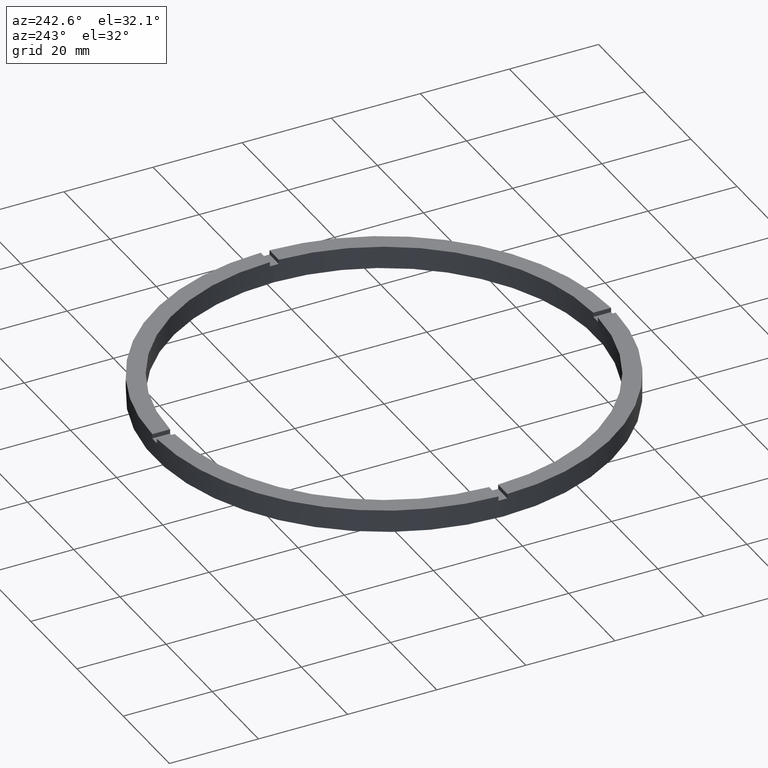
[diagram: clean part render]
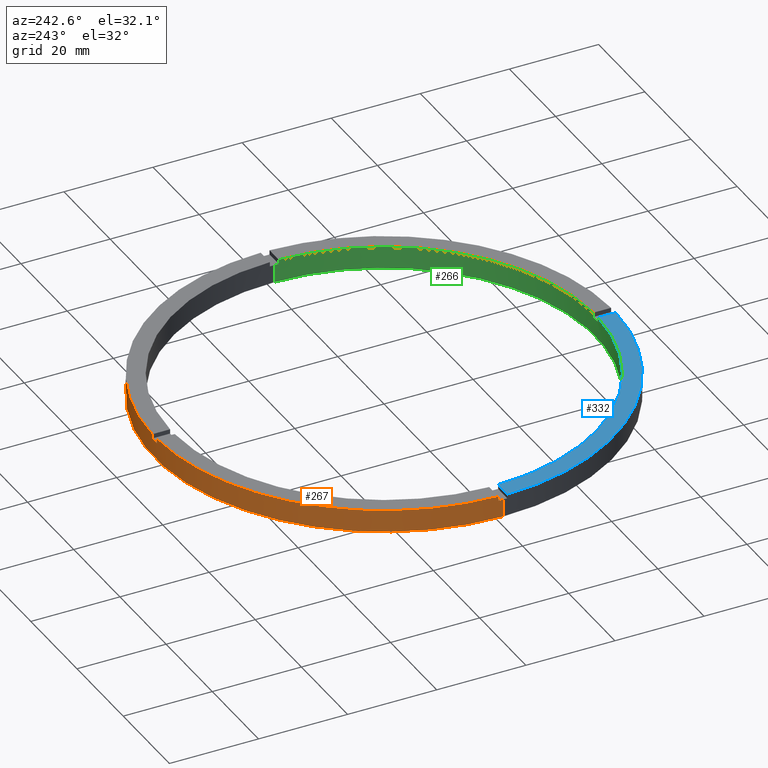
[diagram: same view with three faces highlighted in distinct colors, each labeled with its STEP entity id]
A machine part, auxiliary view with three faces highlighted in distinct colors.
Their STEP definitions:

[orange] entity #267 — the highlighted cylindrical surface (partial cylindrical patch) has radius 51.5 mm, axis along (-0, -0, -1).
#5 = DIRECTION ( 'NONE',  ( 0.000000000000000000, 0.000000000000000000, 1.000000000000000000 ) ) ;
#16 = VECTOR ( 'NONE', #663, 1000.000000000000000 ) ;
#20 = LINE ( 'NONE', #373, #16 ) ;
#23 = VECTOR ( 'NONE', #202, 1000.000000000000000 ) ;
#26 = VECTOR ( 'NONE', #5, 1000.000000000000000 ) ;
#27 = CARTESIAN_POINT ( 'NONE',  ( 0.000000000000000000, 0.000000000000000000, 0.000000000000000000 ) ) ;
#40 = AXIS2_PLACEMENT_3D ( 'NONE', #416, #780, #235 ) ;
#50 = CIRCLE ( 'NONE', #251, 51.50000000000000000 ) ;
#69 = CARTESIAN_POINT ( 'NONE',  ( -51.49029034682169481, 0.9999999999999681366, 5.000000000000000000 ) ) ;
#72 = VECTOR ( 'NONE', #738, 1000.000000000000000 ) ;
#101 = CARTESIAN_POINT ( 'NONE',  ( 0.000000000000000000, 0.000000000000000000, 5.000000000000000000 ) ) ;
#106 = ORIENTED_EDGE ( 'NONE', *, *, #641, .F. ) ;
#117 = VERTEX_POINT ( 'NONE', #261 ) ;
#125 = CARTESIAN_POINT ( 'NONE',  ( 51.50000000000000000, 6.306931015608868807E-15, 4.000000000000000000 ) ) ;
#153 = ORIENTED_EDGE ( 'NONE', *, *, #494, .F. ) ;
#156 = EDGE_CURVE ( 'NONE', #403, #117, #571, .T. ) ;
#158 = ORIENTED_EDGE ( 'NONE', *, *, #635, .T. ) ;
#174 = VERTEX_POINT ( 'NONE', #551 ) ;
#199 = AXIS2_PLACEMENT_3D ( 'NONE', #247, #435, #746 ) ;
#202 = DIRECTION ( 'NONE',  ( -0.000000000000000000, -0.000000000000000000, -1.000000000000000000 ) ) ;
#217 = VERTEX_POINT ( 'NONE', #298 ) ;
#226 = DIRECTION ( 'NONE',  ( 0.000000000000000000, 0.000000000000000000, 1.000000000000000000 ) ) ;
#235 = DIRECTION ( 'NONE',  ( 1.000000000000000000, 0.000000000000000000, 0.000000000000000000 ) ) ;
#237 = EDGE_CURVE ( 'NONE', #524, #399, #20, .T. ) ;
#247 = CARTESIAN_POINT ( 'NONE',  ( 0.000000000000000000, 0.000000000000000000, 5.000000000000000000 ) ) ;
#251 = AXIS2_PLACEMENT_3D ( 'NONE', #27, #648, #413 ) ;
#261 = CARTESIAN_POINT ( 'NONE',  ( 51.50000000000000000, 6.306931015608868807E-15, 0.000000000000000000 ) ) ;
#267 = ADVANCED_FACE ( 'NONE', ( #278 ), #546, .T. ) ;
#278 = FACE_OUTER_BOUND ( 'NONE', #515, .T. ) ;
#280 = LINE ( 'NONE', #69, #26 ) ;
#292 = EDGE_CURVE ( 'NONE', #217, #433, #562, .T. ) ;
#298 = CARTESIAN_POINT ( 'NONE',  ( 51.49029034682169481, 0.9999999999998452349, 5.000000000000000000 ) ) ;
#306 = LINE ( 'NONE', #671, #541 ) ;
#321 = CIRCLE ( 'NONE', #539, 51.50000000000000000 ) ;
#322 = CARTESIAN_POINT ( 'NONE',  ( 51.49029034682169481, 0.9999999999998452349, 4.000000000000000000 ) ) ;
#323 = VECTOR ( 'NONE', #708, 1000.000000000000000 ) ;
#331 = EDGE_CURVE ( 'NONE', #174, #433, #306, .T. ) ;
#334 = EDGE_CURVE ( 'NONE', #174, #399, #559, .T. ) ;
#364 = AXIS2_PLACEMENT_3D ( 'NONE', #508, #668, #557 ) ;
#373 = CARTESIAN_POINT ( 'NONE',  ( -1.000000000000026867, 51.49029034682169481, 5.000000000000000000 ) ) ;
#376 = EDGE_CURVE ( 'NONE', #414, #528, #280, .T. ) ;
#381 = VERTEX_POINT ( 'NONE', #322 ) ;
#384 = ORIENTED_EDGE ( 'NONE', *, *, #331, .T. ) ;
#396 = VERTEX_POINT ( 'NONE', #464 ) ;
#398 = DIRECTION ( 'NONE',  ( 1.000000000000000000, 0.000000000000000000, 0.000000000000000000 ) ) ;
#399 = VERTEX_POINT ( 'NONE', #519 ) ;
#403 = VERTEX_POINT ( 'NONE', #125 ) ;
#411 = EDGE_CURVE ( 'NONE', #414, #396, #569, .T. ) ;
#412 = AXIS2_PLACEMENT_3D ( 'NONE', #450, #445, #398 ) ;
#413 = DIRECTION ( 'NONE',  ( 1.000000000000000000, 0.000000000000000000, 0.000000000000000000 ) ) ;
#414 = VERTEX_POINT ( 'NONE', #618 ) ;
#416 = CARTESIAN_POINT ( 'NONE',  ( 0.000000000000000000, 0.000000000000000000, 4.000000000000000000 ) ) ;
#429 = ORIENTED_EDGE ( 'NONE', *, *, #292, .F. ) ;
#433 = VERTEX_POINT ( 'NONE', #607 ) ;
#434 = CARTESIAN_POINT ( 'NONE',  ( -51.50000000000000000, 0.000000000000000000, 0.000000000000000000 ) ) ;
#435 = DIRECTION ( 'NONE',  ( 0.000000000000000000, 0.000000000000000000, 1.000000000000000000 ) ) ;
#443 = CARTESIAN_POINT ( 'NONE',  ( -51.49029034682169481, 0.9999999999999681366, 5.000000000000000000 ) ) ;
#445 = DIRECTION ( 'NONE',  ( 0.000000000000000000, -0.000000000000000000, 1.000000000000000000 ) ) ;
#450 = CARTESIAN_POINT ( 'NONE',  ( 0.000000000000000000, 0.000000000000000000, 4.000000000000000000 ) ) ;
#454 = ORIENTED_EDGE ( 'NONE', *, *, #334, .F. ) ;
#464 = CARTESIAN_POINT ( 'NONE',  ( -51.50000000000000000, 0.000000000000000000, 4.000000000000000000 ) ) ;
#493 = DIRECTION ( 'NONE',  ( 1.000000000000000000, 0.000000000000000000, 0.000000000000000000 ) ) ;
#494 = EDGE_CURVE ( 'NONE', #396, #512, #595, .T. ) ;
#498 = CARTESIAN_POINT ( 'NONE',  ( 0.000000000000000000, 0.000000000000000000, 4.000000000000000000 ) ) ;
#507 = CARTESIAN_POINT ( 'NONE',  ( -1.000000000000026867, 51.49029034682169481, 5.000000000000000000 ) ) ;
#508 = CARTESIAN_POINT ( 'NONE',  ( 0.000000000000000000, 0.000000000000000000, 5.000000000000000000 ) ) ;
#512 = VERTEX_POINT ( 'NONE', #434 ) ;
#515 = EDGE_LOOP ( 'NONE', ( #688, #651, #158, #153, #683, #701, #106, #626, #454, #384, #429, #707 ) ) ;
#519 = CARTESIAN_POINT ( 'NONE',  ( -1.000000000000026867, 51.49029034682169481, 4.000000000000000000 ) ) ;
#524 = VERTEX_POINT ( 'NONE', #507 ) ;
#528 = VERTEX_POINT ( 'NONE', #443 ) ;
#536 = CARTESIAN_POINT ( 'NONE',  ( -51.50000000000000000, 0.000000000000000000, 5.000000000000000000 ) ) ;
#539 = AXIS2_PLACEMENT_3D ( 'NONE', #101, #226, #493 ) ;
#541 = VECTOR ( 'NONE', #747, 1000.000000000000000 ) ;
#546 = CYLINDRICAL_SURFACE ( 'NONE', #364, 51.50000000000000000 ) ;
#551 = CARTESIAN_POINT ( 'NONE',  ( 0.9999999999999731326, 51.49029034682169481, 4.000000000000000000 ) ) ;
#557 = DIRECTION ( 'NONE',  ( -1.000000000000000000, 0.000000000000000000, 0.000000000000000000 ) ) ;
#559 = CIRCLE ( 'NONE', #412, 51.50000000000000000 ) ;
#562 = CIRCLE ( 'NONE', #199, 51.50000000000000000 ) ;
#569 = CIRCLE ( 'NONE', #40, 51.50000000000000000 ) ;
#571 = LINE ( 'NONE', #664, #23 ) ;
#576 = LINE ( 'NONE', #585, #323 ) ;
#585 = CARTESIAN_POINT ( 'NONE',  ( 51.49029034682169481, 0.9999999999998452349, 5.000000000000000000 ) ) ;
#592 = CIRCLE ( 'NONE', #713, 51.50000000000000000 ) ;
#595 = LINE ( 'NONE', #536, #72 ) ;
#603 = DIRECTION ( 'NONE',  ( 0.000000000000000000, 0.000000000000000000, 1.000000000000000000 ) ) ;
#607 = CARTESIAN_POINT ( 'NONE',  ( 0.9999999999999731326, 51.49029034682169481, 5.000000000000000000 ) ) ;
#618 = CARTESIAN_POINT ( 'NONE',  ( -51.49029034682169481, 0.9999999999999681366, 4.000000000000000000 ) ) ;
#626 = ORIENTED_EDGE ( 'NONE', *, *, #237, .T. ) ;
#635 = EDGE_CURVE ( 'NONE', #117, #512, #50, .T. ) ;
#641 = EDGE_CURVE ( 'NONE', #524, #528, #321, .T. ) ;
#648 = DIRECTION ( 'NONE',  ( 0.000000000000000000, 0.000000000000000000, 1.000000000000000000 ) ) ;
#651 = ORIENTED_EDGE ( 'NONE', *, *, #156, .T. ) ;
#663 = DIRECTION ( 'NONE',  ( -0.000000000000000000, -0.000000000000000000, -1.000000000000000000 ) ) ;
#664 = CARTESIAN_POINT ( 'NONE',  ( 51.50000000000000000, 6.306931015608868807E-15, 5.000000000000000000 ) ) ;
#668 = DIRECTION ( 'NONE',  ( -0.000000000000000000, -0.000000000000000000, -1.000000000000000000 ) ) ;
#671 = CARTESIAN_POINT ( 'NONE',  ( 0.9999999999999731326, 51.49029034682169481, 5.000000000000000000 ) ) ;
#683 = ORIENTED_EDGE ( 'NONE', *, *, #411, .F. ) ;
#688 = ORIENTED_EDGE ( 'NONE', *, *, #716, .F. ) ;
#701 = ORIENTED_EDGE ( 'NONE', *, *, #376, .T. ) ;
#707 = ORIENTED_EDGE ( 'NONE', *, *, #735, .T. ) ;
#708 = DIRECTION ( 'NONE',  ( -0.000000000000000000, -0.000000000000000000, -1.000000000000000000 ) ) ;
#713 = AXIS2_PLACEMENT_3D ( 'NONE', #498, #603, #771 ) ;
#716 = EDGE_CURVE ( 'NONE', #403, #381, #592, .T. ) ;
#735 = EDGE_CURVE ( 'NONE', #217, #381, #576, .T. ) ;
#738 = DIRECTION ( 'NONE',  ( -0.000000000000000000, -0.000000000000000000, -1.000000000000000000 ) ) ;
#746 = DIRECTION ( 'NONE',  ( 1.000000000000000000, 0.000000000000000000, 0.000000000000000000 ) ) ;
#747 = DIRECTION ( 'NONE',  ( 0.000000000000000000, 0.000000000000000000, 1.000000000000000000 ) ) ;
#771 = DIRECTION ( 'NONE',  ( 1.000000000000000000, 0.000000000000000000, 0.000000000000000000 ) ) ;
#780 = DIRECTION ( 'NONE',  ( 0.000000000000000000, 0.000000000000000000, 1.000000000000000000 ) ) ;

[blue] entity #332 — the highlighted planar face has unit normal (0, 0, 1).
#58 = CARTESIAN_POINT ( 'NONE',  ( 0.000000000000000000, 0.000000000000000000, 5.000000000000000000 ) ) ;
#68 = LINE ( 'NONE', #401, #338 ) ;
#94 = DIRECTION ( 'NONE',  ( 1.000000000000000000, 1.951563910473907735E-16, -0.000000000000000000 ) ) ;
#95 = CARTESIAN_POINT ( 'NONE',  ( -47.48947251760120736, -1.000000000000031308, 5.000000000000000000 ) ) ;
#111 = DIRECTION ( 'NONE',  ( 1.000000000000000000, 0.000000000000000000, 0.000000000000000000 ) ) ;
#124 = ORIENTED_EDGE ( 'NONE', *, *, #347, .F. ) ;
#133 = VERTEX_POINT ( 'NONE', #210 ) ;
#141 = EDGE_LOOP ( 'NONE', ( #124, #472, #193, #197 ) ) ;
#170 = CARTESIAN_POINT ( 'NONE',  ( -1.000000000000156986, -47.48947251760120736, 5.000000000000000000 ) ) ;
#178 = DIRECTION ( 'NONE',  ( 0.000000000000000000, 0.000000000000000000, 1.000000000000000000 ) ) ;
#193 = ORIENTED_EDGE ( 'NONE', *, *, #779, .F. ) ;
#197 = ORIENTED_EDGE ( 'NONE', *, *, #252, .T. ) ;
#200 = DIRECTION ( 'NONE',  ( 1.000000000000000000, 0.000000000000000000, 0.000000000000000000 ) ) ;
#210 = CARTESIAN_POINT ( 'NONE',  ( -51.49029034682169481, -1.000000000000031974, 5.000000000000000000 ) ) ;
#215 = DIRECTION ( 'NONE',  ( 0.000000000000000000, 0.000000000000000000, 1.000000000000000000 ) ) ;
#252 = EDGE_CURVE ( 'NONE', #133, #394, #290, .T. ) ;
#290 = CIRCLE ( 'NONE', #692, 51.50000000000000000 ) ;
#301 = CIRCLE ( 'NONE', #370, 47.50000000000000711 ) ;
#304 = LINE ( 'NONE', #620, #307 ) ;
#307 = VECTOR ( 'NONE', #552, 1000.000000000000000 ) ;
#332 = ADVANCED_FACE ( 'NONE', ( #544 ), #783, .T. ) ;
#338 = VECTOR ( 'NONE', #94, 1000.000000000000000 ) ;
#341 = DIRECTION ( 'NONE',  ( 1.000000000000000000, 0.000000000000000000, -0.000000000000000000 ) ) ;
#347 = EDGE_CURVE ( 'NONE', #523, #394, #304, .T. ) ;
#370 = AXIS2_PLACEMENT_3D ( 'NONE', #564, #178, #111 ) ;
#383 = CARTESIAN_POINT ( 'NONE',  ( -1.000000000000156319, -51.49029034682169481, 5.000000000000000000 ) ) ;
#394 = VERTEX_POINT ( 'NONE', #383 ) ;
#401 = CARTESIAN_POINT ( 'NONE',  ( -41.50000000000018474, -1.000000000000029976, 5.000000000000000000 ) ) ;
#408 = EDGE_CURVE ( 'NONE', #634, #523, #301, .T. ) ;
#452 = AXIS2_PLACEMENT_3D ( 'NONE', #560, #215, #341 ) ;
#472 = ORIENTED_EDGE ( 'NONE', *, *, #408, .F. ) ;
#505 = DIRECTION ( 'NONE',  ( 0.000000000000000000, 0.000000000000000000, 1.000000000000000000 ) ) ;
#523 = VERTEX_POINT ( 'NONE', #170 ) ;
#544 = FACE_OUTER_BOUND ( 'NONE', #141, .T. ) ;
#552 = DIRECTION ( 'NONE',  ( 1.301042606982605074E-16, -1.000000000000000000, 0.000000000000000000 ) ) ;
#560 = CARTESIAN_POINT ( 'NONE',  ( 0.000000000000000000, 0.000000000000000000, 5.000000000000000000 ) ) ;
#564 = CARTESIAN_POINT ( 'NONE',  ( 0.000000000000000000, 0.000000000000000000, 5.000000000000000000 ) ) ;
#620 = CARTESIAN_POINT ( 'NONE',  ( -1.000000000000157652, -41.50000000000017764, 5.000000000000000000 ) ) ;
#634 = VERTEX_POINT ( 'NONE', #95 ) ;
#692 = AXIS2_PLACEMENT_3D ( 'NONE', #58, #505, #200 ) ;
#779 = EDGE_CURVE ( 'NONE', #133, #634, #68, .T. ) ;
#783 = PLANE ( 'NONE',  #452 ) ;

[green] entity #266 — the highlighted cylindrical surface (partial cylindrical patch) has radius 47.5 mm, axis along (-0, -0, -1).
#3 = DIRECTION ( 'NONE',  ( -0.000000000000000000, -0.000000000000000000, -1.000000000000000000 ) ) ;
#4 = EDGE_CURVE ( 'NONE', #698, #675, #157, .T. ) ;
#11 = AXIS2_PLACEMENT_3D ( 'NONE', #97, #549, #496 ) ;
#17 = FACE_OUTER_BOUND ( 'NONE', #476, .T. ) ;
#41 = CARTESIAN_POINT ( 'NONE',  ( -47.48947251760120736, -1.000000000000031308, 5.000000000000000000 ) ) ;
#42 = LINE ( 'NONE', #761, #335 ) ;
#47 = CARTESIAN_POINT ( 'NONE',  ( 47.48947251760120736, -1.000000000000154987, 5.000000000000000000 ) ) ;
#49 = LINE ( 'NONE', #308, #589 ) ;
#51 = LINE ( 'NONE', #41, #575 ) ;
#55 = CIRCLE ( 'NONE', #392, 47.50000000000000711 ) ;
#56 = CIRCLE ( 'NONE', #509, 47.50000000000000711 ) ;
#59 = CIRCLE ( 'NONE', #285, 47.50000000000000711 ) ;
#91 = DIRECTION ( 'NONE',  ( -0.000000000000000000, -0.000000000000000000, -1.000000000000000000 ) ) ;
#95 = CARTESIAN_POINT ( 'NONE',  ( -47.48947251760120736, -1.000000000000031308, 5.000000000000000000 ) ) ;
#97 = CARTESIAN_POINT ( 'NONE',  ( 0.000000000000000000, 0.000000000000000000, 5.000000000000000000 ) ) ;
#100 = CARTESIAN_POINT ( 'NONE',  ( 47.50000000000000711, 5.817072295949929004E-15, 4.000000000000000000 ) ) ;
#111 = DIRECTION ( 'NONE',  ( 1.000000000000000000, 0.000000000000000000, 0.000000000000000000 ) ) ;
#128 = VERTEX_POINT ( 'NONE', #751 ) ;
#132 = ORIENTED_EDGE ( 'NONE', *, *, #759, .F. ) ;
#138 = ORIENTED_EDGE ( 'NONE', *, *, #782, .T. ) ;
#145 = CARTESIAN_POINT ( 'NONE',  ( 0.9999999999998430145, -47.48947251760121446, 4.000000000000000000 ) ) ;
#148 = EDGE_CURVE ( 'NONE', #495, #766, #567, .T. ) ;
#155 = DIRECTION ( 'NONE',  ( 0.000000000000000000, 0.000000000000000000, 1.000000000000000000 ) ) ;
#157 = LINE ( 'NONE', #47, #159 ) ;
#159 = VECTOR ( 'NONE', #165, 1000.000000000000000 ) ;
#160 = VERTEX_POINT ( 'NONE', #100 ) ;
#165 = DIRECTION ( 'NONE',  ( 0.000000000000000000, 0.000000000000000000, 1.000000000000000000 ) ) ;
#166 = CARTESIAN_POINT ( 'NONE',  ( -1.000000000000156986, -47.48947251760120736, 4.000000000000000000 ) ) ;
#170 = CARTESIAN_POINT ( 'NONE',  ( -1.000000000000156986, -47.48947251760120736, 5.000000000000000000 ) ) ;
#173 = DIRECTION ( 'NONE',  ( 1.000000000000000000, 0.000000000000000000, 0.000000000000000000 ) ) ;
#178 = DIRECTION ( 'NONE',  ( 0.000000000000000000, 0.000000000000000000, 1.000000000000000000 ) ) ;
#179 = DIRECTION ( 'NONE',  ( -1.000000000000000000, 0.000000000000000000, 0.000000000000000000 ) ) ;
#181 = ORIENTED_EDGE ( 'NONE', *, *, #4, .F. ) ;
#186 = EDGE_CURVE ( 'NONE', #676, #523, #283, .T. ) ;
#187 = ORIENTED_EDGE ( 'NONE', *, *, #148, .F. ) ;
#225 = DIRECTION ( 'NONE',  ( -0.000000000000000000, 0.000000000000000000, 1.000000000000000000 ) ) ;
#250 = DIRECTION ( 'NONE',  ( 1.000000000000000000, 0.000000000000000000, 0.000000000000000000 ) ) ;
#254 = DIRECTION ( 'NONE',  ( -0.000000000000000000, -0.000000000000000000, -1.000000000000000000 ) ) ;
#266 = ADVANCED_FACE ( 'NONE', ( #17 ), #284, .F. ) ;
#283 = LINE ( 'NONE', #615, #540 ) ;
#284 = CYLINDRICAL_SURFACE ( 'NONE', #757, 47.50000000000000711 ) ;
#285 = AXIS2_PLACEMENT_3D ( 'NONE', #666, #368, #250 ) ;
#291 = CARTESIAN_POINT ( 'NONE',  ( 47.48947251760120736, -1.000000000000154987, 4.000000000000000000 ) ) ;
#299 = CARTESIAN_POINT ( 'NONE',  ( 0.9999999999998430145, -47.48947251760121446, 5.000000000000000000 ) ) ;
#301 = CIRCLE ( 'NONE', #370, 47.50000000000000711 ) ;
#308 = CARTESIAN_POINT ( 'NONE',  ( 47.50000000000000711, 5.817072295949929004E-15, 5.000000000000000000 ) ) ;
#313 = CARTESIAN_POINT ( 'NONE',  ( 47.50000000000000711, 5.817072295949929004E-15, 0.000000000000000000 ) ) ;
#329 = AXIS2_PLACEMENT_3D ( 'NONE', #530, #155, #625 ) ;
#335 = VECTOR ( 'NONE', #91, 1000.000000000000000 ) ;
#343 = DIRECTION ( 'NONE',  ( 0.000000000000000000, 0.000000000000000000, 1.000000000000000000 ) ) ;
#354 = CARTESIAN_POINT ( 'NONE',  ( -47.48947251760120736, -1.000000000000031308, 4.000000000000000000 ) ) ;
#355 = CARTESIAN_POINT ( 'NONE',  ( 0.9999999999998430145, -47.48947251760121446, 5.000000000000000000 ) ) ;
#361 = DIRECTION ( 'NONE',  ( -0.000000000000000000, -0.000000000000000000, -1.000000000000000000 ) ) ;
#368 = DIRECTION ( 'NONE',  ( 0.000000000000000000, 0.000000000000000000, 1.000000000000000000 ) ) ;
#370 = AXIS2_PLACEMENT_3D ( 'NONE', #564, #178, #111 ) ;
#379 = ORIENTED_EDGE ( 'NONE', *, *, #408, .T. ) ;
#392 = AXIS2_PLACEMENT_3D ( 'NONE', #525, #225, #582 ) ;
#408 = EDGE_CURVE ( 'NONE', #634, #523, #301, .T. ) ;
#431 = ORIENTED_EDGE ( 'NONE', *, *, #700, .F. ) ;
#437 = ORIENTED_EDGE ( 'NONE', *, *, #486, .T. ) ;
#448 = CARTESIAN_POINT ( 'NONE',  ( 0.000000000000000000, 0.000000000000000000, 5.000000000000000000 ) ) ;
#462 = ORIENTED_EDGE ( 'NONE', *, *, #617, .F. ) ;
#476 = EDGE_LOOP ( 'NONE', ( #672, #437, #462, #132, #490, #431, #379, #661, #138, #187, #737, #181 ) ) ;
#477 = VERTEX_POINT ( 'NONE', #313 ) ;
#486 = EDGE_CURVE ( 'NONE', #160, #477, #49, .T. ) ;
#490 = ORIENTED_EDGE ( 'NONE', *, *, #547, .T. ) ;
#495 = VERTEX_POINT ( 'NONE', #355 ) ;
#496 = DIRECTION ( 'NONE',  ( 1.000000000000000000, 0.000000000000000000, 0.000000000000000000 ) ) ;
#500 = EDGE_CURVE ( 'NONE', #495, #675, #574, .T. ) ;
#509 = AXIS2_PLACEMENT_3D ( 'NONE', #609, #343, #173 ) ;
#523 = VERTEX_POINT ( 'NONE', #170 ) ;
#525 = CARTESIAN_POINT ( 'NONE',  ( 0.000000000000000000, 0.000000000000000000, 4.000000000000000000 ) ) ;
#529 = CARTESIAN_POINT ( 'NONE',  ( 47.48947251760120736, -1.000000000000154987, 5.000000000000000000 ) ) ;
#530 = CARTESIAN_POINT ( 'NONE',  ( 0.000000000000000000, 0.000000000000000000, 0.000000000000000000 ) ) ;
#534 = CARTESIAN_POINT ( 'NONE',  ( -47.50000000000000711, 0.000000000000000000, 0.000000000000000000 ) ) ;
#540 = VECTOR ( 'NONE', #669, 1000.000000000000000 ) ;
#547 = EDGE_CURVE ( 'NONE', #128, #720, #59, .T. ) ;
#548 = VECTOR ( 'NONE', #3, 1000.000000000000000 ) ;
#549 = DIRECTION ( 'NONE',  ( 0.000000000000000000, 0.000000000000000000, 1.000000000000000000 ) ) ;
#564 = CARTESIAN_POINT ( 'NONE',  ( 0.000000000000000000, 0.000000000000000000, 5.000000000000000000 ) ) ;
#567 = LINE ( 'NONE', #299, #548 ) ;
#574 = CIRCLE ( 'NONE', #11, 47.50000000000000711 ) ;
#575 = VECTOR ( 'NONE', #714, 1000.000000000000000 ) ;
#579 = CIRCLE ( 'NONE', #329, 47.50000000000000711 ) ;
#582 = DIRECTION ( 'NONE',  ( 1.000000000000000000, 0.000000000000000000, 0.000000000000000000 ) ) ;
#589 = VECTOR ( 'NONE', #361, 1000.000000000000000 ) ;
#609 = CARTESIAN_POINT ( 'NONE',  ( 0.000000000000000000, 0.000000000000000000, 4.000000000000000000 ) ) ;
#614 = EDGE_CURVE ( 'NONE', #698, #160, #56, .T. ) ;
#615 = CARTESIAN_POINT ( 'NONE',  ( -1.000000000000156986, -47.48947251760120736, 5.000000000000000000 ) ) ;
#617 = EDGE_CURVE ( 'NONE', #673, #477, #579, .T. ) ;
#625 = DIRECTION ( 'NONE',  ( 1.000000000000000000, 0.000000000000000000, 0.000000000000000000 ) ) ;
#634 = VERTEX_POINT ( 'NONE', #95 ) ;
#661 = ORIENTED_EDGE ( 'NONE', *, *, #186, .F. ) ;
#666 = CARTESIAN_POINT ( 'NONE',  ( 0.000000000000000000, 0.000000000000000000, 4.000000000000000000 ) ) ;
#669 = DIRECTION ( 'NONE',  ( 0.000000000000000000, 0.000000000000000000, 1.000000000000000000 ) ) ;
#672 = ORIENTED_EDGE ( 'NONE', *, *, #614, .T. ) ;
#673 = VERTEX_POINT ( 'NONE', #534 ) ;
#675 = VERTEX_POINT ( 'NONE', #529 ) ;
#676 = VERTEX_POINT ( 'NONE', #166 ) ;
#698 = VERTEX_POINT ( 'NONE', #291 ) ;
#700 = EDGE_CURVE ( 'NONE', #634, #720, #51, .T. ) ;
#714 = DIRECTION ( 'NONE',  ( -0.000000000000000000, -0.000000000000000000, -1.000000000000000000 ) ) ;
#720 = VERTEX_POINT ( 'NONE', #354 ) ;
#737 = ORIENTED_EDGE ( 'NONE', *, *, #500, .T. ) ;
#751 = CARTESIAN_POINT ( 'NONE',  ( -47.50000000000000711, 0.000000000000000000, 4.000000000000000000 ) ) ;
#757 = AXIS2_PLACEMENT_3D ( 'NONE', #448, #254, #179 ) ;
#759 = EDGE_CURVE ( 'NONE', #128, #673, #42, .T. ) ;
#761 = CARTESIAN_POINT ( 'NONE',  ( -47.50000000000000711, 0.000000000000000000, 5.000000000000000000 ) ) ;
#766 = VERTEX_POINT ( 'NONE', #145 ) ;
#782 = EDGE_CURVE ( 'NONE', #676, #766, #55, .T. ) ;